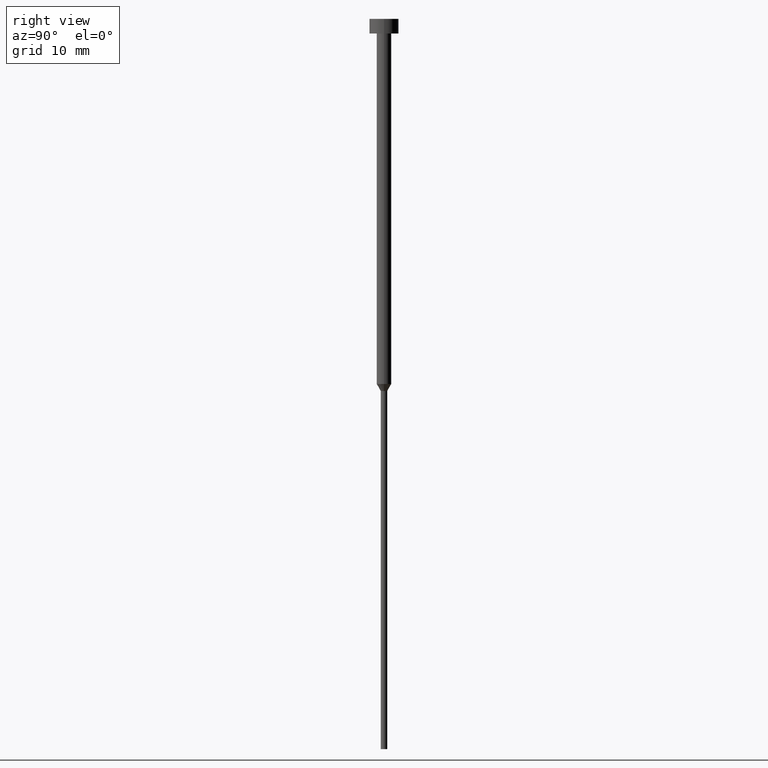
[diagram: clean part render]
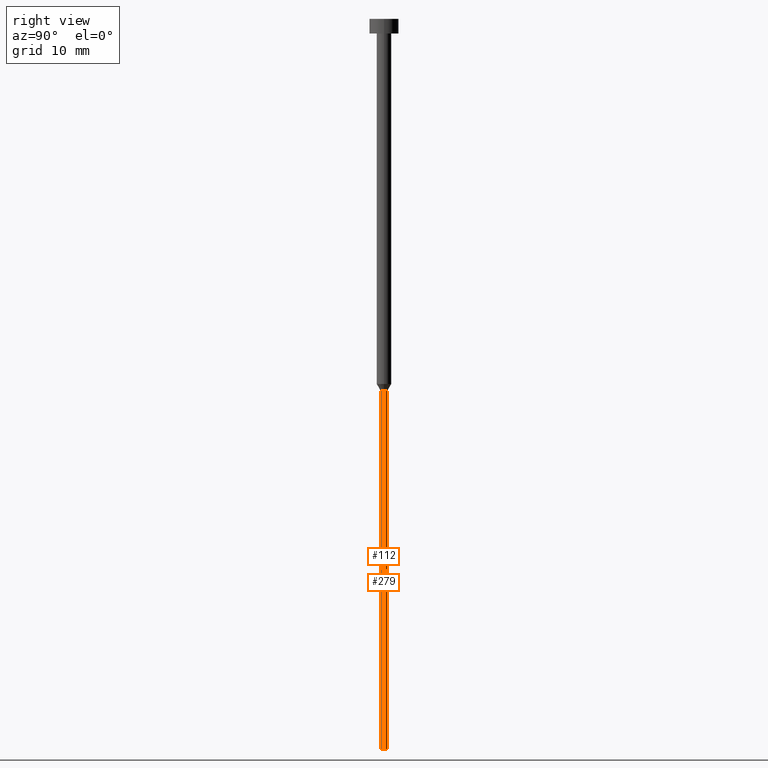
[diagram: same view with one multi-face feature highlighted, each face labeled with its STEP entity id]
A machine part, right view. The highlighted faces form ONE feature: a constant-radius fillet chain: 2 tangent blend faces with common blend radius 0.45 mm. The faces share edges in the B-rep.
Their STEP definitions:
[1] entity #279 (Cylinder):
#20 = CARTESIAN_POINT ( 'NONE',  ( 0.4500000000000000111, 0.000000000000000000, 0.000000000000000000 ) ) ;
#23 = VERTEX_POINT ( 'NONE', #353 ) ;
#34 = FACE_OUTER_BOUND ( 'NONE', #299, .T. ) ;
#41 = AXIS2_PLACEMENT_3D ( 'NONE', #159, #242, #259 ) ;
#42 = AXIS2_PLACEMENT_3D ( 'NONE', #222, #61, #247 ) ;
#44 = CARTESIAN_POINT ( 'NONE',  ( -0.4500000000000000111, 5.510910596163088939E-17, 0.000000000000000000 ) ) ;
#47 = EDGE_CURVE ( 'NONE', #302, #140, #351, .T. ) ;
#61 = DIRECTION ( 'NONE',  ( -0.000000000000000000, -0.000000000000000000, 1.000000000000000000 ) ) ;
#63 = CARTESIAN_POINT ( 'NONE',  ( -0.4500000000000000111, 5.510910596163088939E-17, -100.0000000000000000 ) ) ;
#69 = EDGE_CURVE ( 'NONE', #355, #23, #230, .T. ) ;
#92 = DIRECTION ( 'NONE',  ( -0.000000000000000000, -0.000000000000000000, 1.000000000000000000 ) ) ;
#98 = CARTESIAN_POINT ( 'NONE',  ( 0.000000000000000000, 0.000000000000000000, -50.95262794416288443 ) ) ;
#113 = CYLINDRICAL_SURFACE ( 'NONE', #42, 0.4500000000000000111 ) ;
#132 = EDGE_CURVE ( 'NONE', #302, #355, #198, .T. ) ;
#140 = VERTEX_POINT ( 'NONE', #264 ) ;
#142 = AXIS2_PLACEMENT_3D ( 'NONE', #98, #324, #288 ) ;
#155 = VECTOR ( 'NONE', #92, 1000.000000000000000 ) ;
#157 = ORIENTED_EDGE ( 'NONE', *, *, #250, .F. ) ;
#159 = CARTESIAN_POINT ( 'NONE',  ( 0.000000000000000000, 0.000000000000000000, -100.0000000000000000 ) ) ;
#179 = DIRECTION ( 'NONE',  ( -0.000000000000000000, -0.000000000000000000, 1.000000000000000000 ) ) ;
#198 = CIRCLE ( 'NONE', #41, 0.4500000000000000111 ) ;
#218 = ORIENTED_EDGE ( 'NONE', *, *, #47, .F. ) ;
#222 = CARTESIAN_POINT ( 'NONE',  ( 0.000000000000000000, 0.000000000000000000, 0.000000000000000000 ) ) ;
#230 = LINE ( 'NONE', #44, #155 ) ;
#242 = DIRECTION ( 'NONE',  ( -0.000000000000000000, -0.000000000000000000, 1.000000000000000000 ) ) ;
#247 = DIRECTION ( 'NONE',  ( 1.000000000000000000, 0.000000000000000000, 0.000000000000000000 ) ) ;
#250 = EDGE_CURVE ( 'NONE', #140, #23, #305, .T. ) ;
#258 = ORIENTED_EDGE ( 'NONE', *, *, #132, .T. ) ;
#259 = DIRECTION ( 'NONE',  ( 1.000000000000000000, 0.000000000000000000, 0.000000000000000000 ) ) ;
#264 = CARTESIAN_POINT ( 'NONE',  ( 0.4500000000000000111, 0.000000000000000000, -50.95262794416288443 ) ) ;
#278 = CARTESIAN_POINT ( 'NONE',  ( 0.4500000000000000111, 0.000000000000000000, -100.0000000000000000 ) ) ;
#279 = ADVANCED_FACE ( 'NONE', ( #34 ), #113, .T. ) ;
#288 = DIRECTION ( 'NONE',  ( 1.000000000000000000, 0.000000000000000000, 0.000000000000000000 ) ) ;
#299 = EDGE_LOOP ( 'NONE', ( #258, #315, #157, #218 ) ) ;
#302 = VERTEX_POINT ( 'NONE', #278 ) ;
#305 = CIRCLE ( 'NONE', #142, 0.4500000000000000111 ) ;
#309 = VECTOR ( 'NONE', #179, 1000.000000000000000 ) ;
#315 = ORIENTED_EDGE ( 'NONE', *, *, #69, .T. ) ;
#324 = DIRECTION ( 'NONE',  ( -0.000000000000000000, -0.000000000000000000, 1.000000000000000000 ) ) ;
#351 = LINE ( 'NONE', #20, #309 ) ;
#353 = CARTESIAN_POINT ( 'NONE',  ( -0.4500000000000000111, 5.510910596163088939E-17, -50.95262794416288443 ) ) ;
#355 = VERTEX_POINT ( 'NONE', #63 ) ;
[2] entity #112 (Cylinder):
#5 = DIRECTION ( 'NONE',  ( -0.000000000000000000, -0.000000000000000000, 1.000000000000000000 ) ) ;
#20 = CARTESIAN_POINT ( 'NONE',  ( 0.4500000000000000111, 0.000000000000000000, 0.000000000000000000 ) ) ;
#23 = VERTEX_POINT ( 'NONE', #353 ) ;
#35 = CARTESIAN_POINT ( 'NONE',  ( 0.000000000000000000, 0.000000000000000000, -100.0000000000000000 ) ) ;
#44 = CARTESIAN_POINT ( 'NONE',  ( -0.4500000000000000111, 5.510910596163088939E-17, 0.000000000000000000 ) ) ;
#47 = EDGE_CURVE ( 'NONE', #302, #140, #351, .T. ) ;
#63 = CARTESIAN_POINT ( 'NONE',  ( -0.4500000000000000111, 5.510910596163088939E-17, -100.0000000000000000 ) ) ;
#69 = EDGE_CURVE ( 'NONE', #355, #23, #230, .T. ) ;
#77 = FACE_OUTER_BOUND ( 'NONE', #289, .T. ) ;
#82 = DIRECTION ( 'NONE',  ( 1.000000000000000000, 0.000000000000000000, 0.000000000000000000 ) ) ;
#91 = AXIS2_PLACEMENT_3D ( 'NONE', #167, #5, #82 ) ;
#92 = DIRECTION ( 'NONE',  ( -0.000000000000000000, -0.000000000000000000, 1.000000000000000000 ) ) ;
#112 = ADVANCED_FACE ( 'NONE', ( #77 ), #220, .T. ) ;
#117 = DIRECTION ( 'NONE',  ( 1.000000000000000000, 0.000000000000000000, 0.000000000000000000 ) ) ;
#140 = VERTEX_POINT ( 'NONE', #264 ) ;
#147 = DIRECTION ( 'NONE',  ( -0.000000000000000000, -0.000000000000000000, 1.000000000000000000 ) ) ;
#155 = VECTOR ( 'NONE', #92, 1000.000000000000000 ) ;
#167 = CARTESIAN_POINT ( 'NONE',  ( 0.000000000000000000, 0.000000000000000000, 0.000000000000000000 ) ) ;
#174 = CIRCLE ( 'NONE', #276, 0.4500000000000000111 ) ;
#175 = DIRECTION ( 'NONE',  ( 1.000000000000000000, 0.000000000000000000, 0.000000000000000000 ) ) ;
#179 = DIRECTION ( 'NONE',  ( -0.000000000000000000, -0.000000000000000000, 1.000000000000000000 ) ) ;
#201 = CARTESIAN_POINT ( 'NONE',  ( 0.000000000000000000, 0.000000000000000000, -50.95262794416288443 ) ) ;
#208 = ORIENTED_EDGE ( 'NONE', *, *, #271, .F. ) ;
#212 = ORIENTED_EDGE ( 'NONE', *, *, #346, .T. ) ;
#220 = CYLINDRICAL_SURFACE ( 'NONE', #91, 0.4500000000000000111 ) ;
#230 = LINE ( 'NONE', #44, #155 ) ;
#264 = CARTESIAN_POINT ( 'NONE',  ( 0.4500000000000000111, 0.000000000000000000, -50.95262794416288443 ) ) ;
#268 = ORIENTED_EDGE ( 'NONE', *, *, #47, .T. ) ;
#271 = EDGE_CURVE ( 'NONE', #23, #140, #174, .T. ) ;
#272 = DIRECTION ( 'NONE',  ( -0.000000000000000000, -0.000000000000000000, 1.000000000000000000 ) ) ;
#276 = AXIS2_PLACEMENT_3D ( 'NONE', #201, #272, #175 ) ;
#278 = CARTESIAN_POINT ( 'NONE',  ( 0.4500000000000000111, 0.000000000000000000, -100.0000000000000000 ) ) ;
#284 = ORIENTED_EDGE ( 'NONE', *, *, #69, .F. ) ;
#289 = EDGE_LOOP ( 'NONE', ( #284, #212, #268, #208 ) ) ;
#302 = VERTEX_POINT ( 'NONE', #278 ) ;
#309 = VECTOR ( 'NONE', #179, 1000.000000000000000 ) ;
#321 = AXIS2_PLACEMENT_3D ( 'NONE', #35, #147, #117 ) ;
#346 = EDGE_CURVE ( 'NONE', #355, #302, #348, .T. ) ;
#348 = CIRCLE ( 'NONE', #321, 0.4500000000000000111 ) ;
#351 = LINE ( 'NONE', #20, #309 ) ;
#353 = CARTESIAN_POINT ( 'NONE',  ( -0.4500000000000000111, 5.510910596163088939E-17, -50.95262794416288443 ) ) ;
#355 = VERTEX_POINT ( 'NONE', #63 ) ;